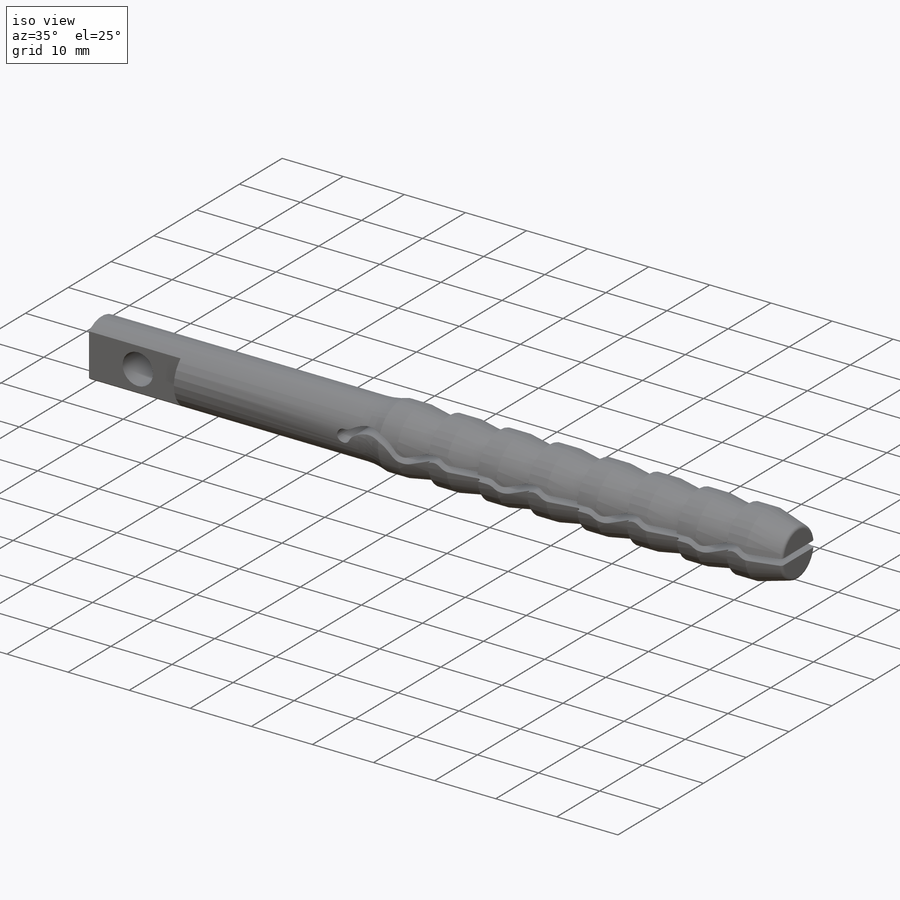
[diagram: iso view]
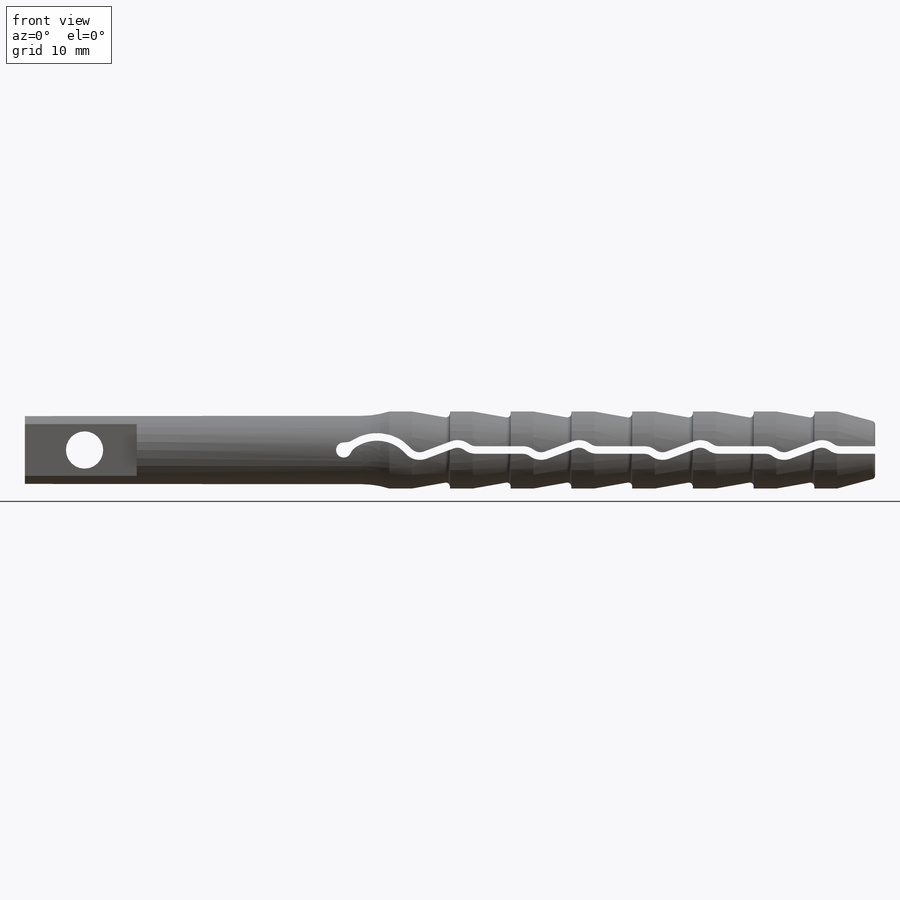
[diagram: front view]
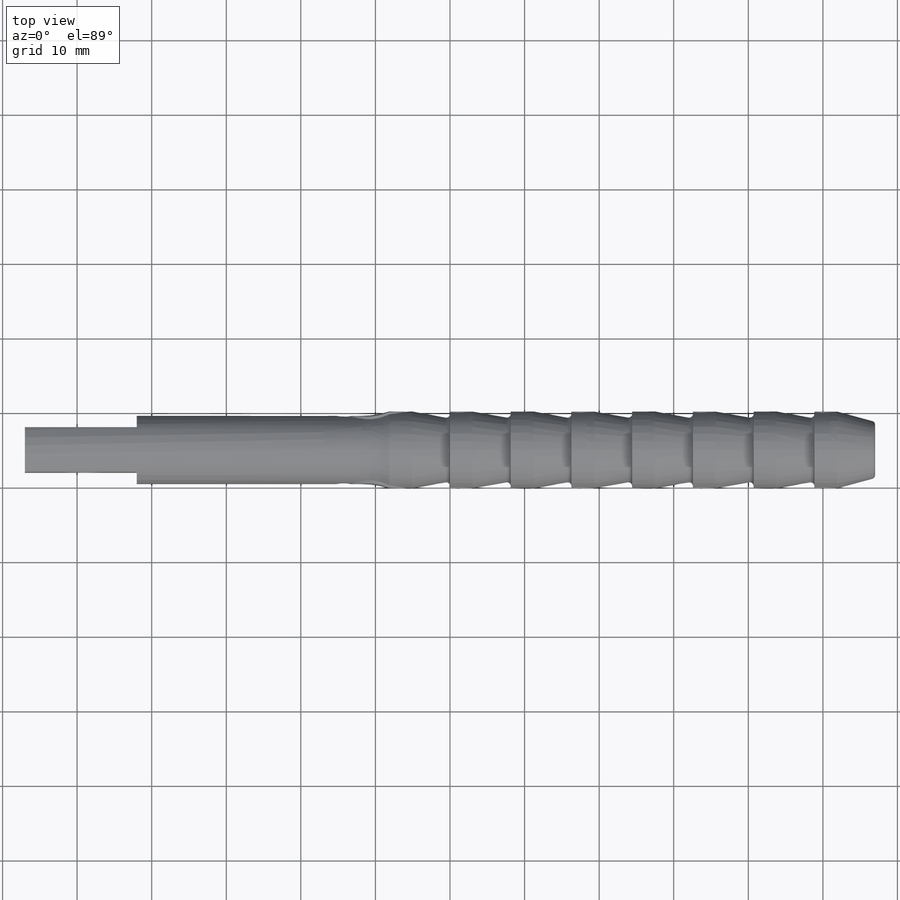
[diagram: top view]
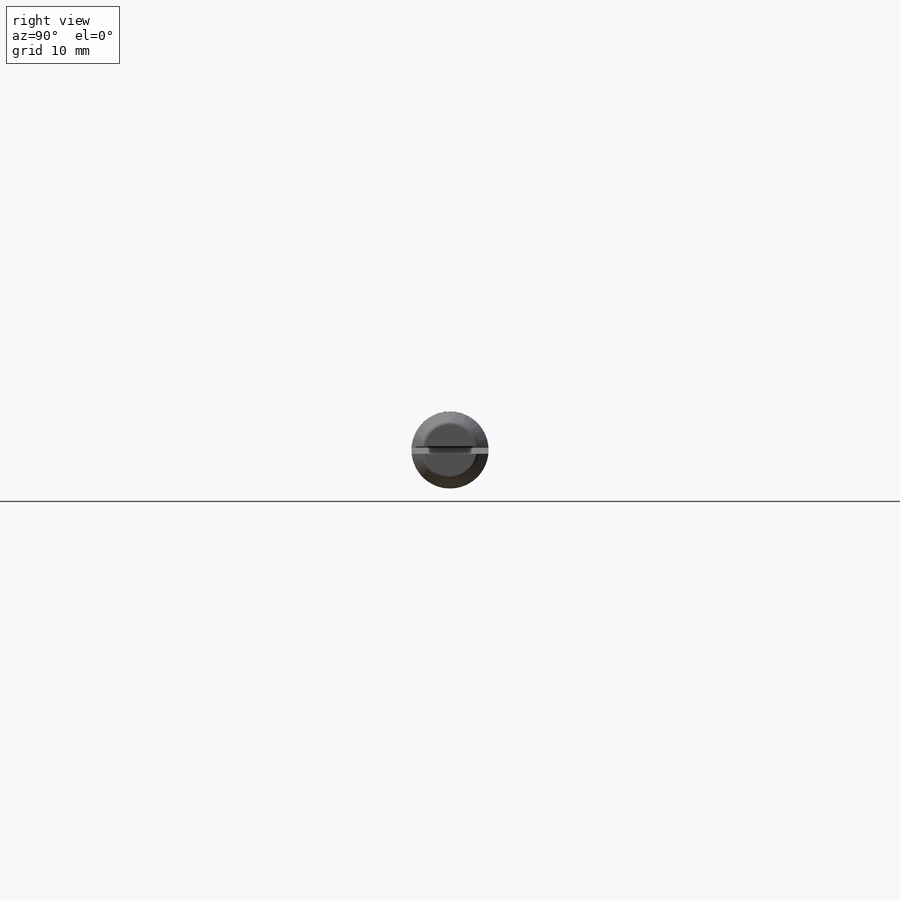
[diagram: right view]
SOLIDWORKS PART (.sldprt)
format: sldprt  version: not decoded by parser v0  size: 823,296 bytes
history: native  units: mm
features: sketch x7, plane x3, cut_extrude x2, material x1, revolve x1, extrude x1, hole x1 (+11 scaffold rows collapsed)
feature tree (27):
  scaffold x11  (default folders/planes/origin — collapsed)
  material  "Materiał <nieokreślony>"
  plane  "Płaszczyzna przednia"
  plane  "Płaszczyzna górna"
  plane  "Płaszczyzna prawa"
  sketch  "Szkic1"  dims[D1=0.0mm]
  revolve  "Obrót wokół linii środkowej1"  Angle=360deg
  sketch  "Szkic2"  dims[D1=0.0mm]
  extrude  "Wyciągnięcie1"  Depth=40mm
  sketch  "Szkic4"  dims[D1=0.0mm D2=0.0mm D3=0.0mm D4=0.0mm D5=0.0mm D6=0.0mm]
  cut_extrude  "Wyciągnięcie2"  Depth=40mm
  sketch  "Szkic5"  dims[D1=6.0mm]
  cut_extrude  "Wytnij-wyciągnięcie1"  Depth=15mm
  sketch  "Szkic6"  dims[D1=8.0mm]
  hole  "Otwór gwintowany M51"  [1 undecoded]
  sketch  "Szkic 3D1"
  sketch  "Szkic7"  dims[hole-wizard template sketch: 28 standard entries collapsed; hole parameters kept: c8.Średnica wiertła gwintu=4.2mm c8.Głębokość otworu gwintowanego=44.0mm c8.Średnica zewnętrzna gwintu=5.0mm c8.Głębokość gwintu=10.0mm c8.D5=~14.816244mm c8.Kąt wiertła=118.0deg]
decode coverage: 10 of 12 modeling features carry decoded parameters
note: ~ marks probable driven/reference dimensions
note: 1 parameter value undecoded
note: suppression state not decoded; provenance and decode notes live in map.json
